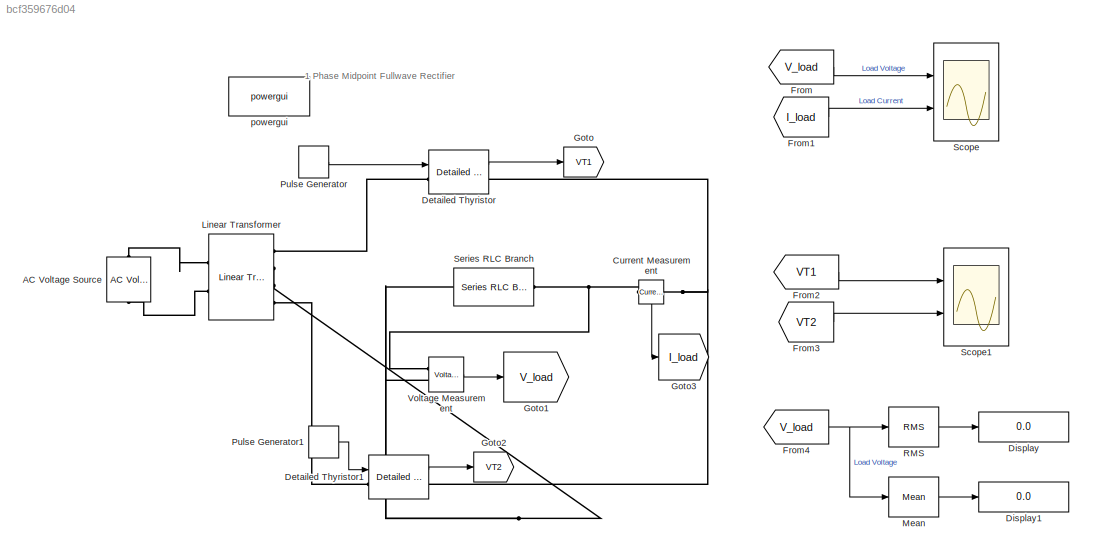
MODEL slx_bcf359676d04
KIND model
CONFIG AbsTol = auto
CONFIG EnableMultiTasking = off
CONFIG FixedStep = auto
CONFIG MaxStep = auto
CONFIG MinStep = auto
CONFIG RelTol = 1e-3
CONFIG SampleTimeConstraint = Unconstrained
CONFIG SolverName = VariableStepAuto
CONFIG StartTime = 0.0
CONFIG StopTime = 0.06
BLOCK [Reference] AC Voltage Source  REF=spsACVoltageSourceLib/AC Voltage Source
  Ports = [0, 0, 0, 0, 0, 1, 1]
  SourceBlock = spsACVoltageSourceLib/AC Voltage Source
  SourceProductBaseCode = PS
  SourceType = AC Voltage Source
BLOCK [Reference] Current Measurement  REF=spsCurrentMeasurementLib/Current Measurement
  NameLocation = top
  Ports = [0, 1, 0, 0, 0, 1, 1]
  SourceBlock = spsCurrentMeasurementLib/Current Measurement
  SourceProductBaseCode = PS
  SourceType = Current Measurement
  UserDataPersistent = on
BLOCK [Reference] Detailed Thyristor  REF=spsDetailedThyristorLib/Detailed Thyristor
  Ports = [1, 1, 0, 0, 0, 1, 1]
  SourceBlock = spsDetailedThyristorLib/Detailed Thyristor
  SourceProductBaseCode = PS
  SourceType = Detailed Thyristor
BLOCK [Reference] Detailed Thyristor1  REF=spsDetailedThyristorLib/Detailed Thyristor
  Ports = [1, 1, 0, 0, 0, 1, 1]
  SourceBlock = spsDetailedThyristorLib/Detailed Thyristor
  SourceProductBaseCode = PS
  SourceType = Detailed Thyristor
BLOCK [Display] Display
  Decimation = 1
  Ports = [1]
BLOCK [Display] Display1
  Decimation = 1
  Ports = [1]
BLOCK [From] From
  GotoTag = V_load
BLOCK [From] From1
  GotoTag = I_load
BLOCK [From] From2
  GotoTag = VT1
BLOCK [From] From3
  GotoTag = VT2
BLOCK [From] From4
  GotoTag = V_load
BLOCK [Goto] Goto
  GotoTag = VT1
BLOCK [Goto] Goto1
  GotoTag = V_load
BLOCK [Goto] Goto2
  GotoTag = VT2
BLOCK [Goto] Goto3
  GotoTag = I_load
BLOCK [Reference] Linear Transformer  REF=spsLinearTransformerLib/Linear Transformer
  Ports = [0, 0, 0, 0, 0, 2, 4]
  SourceBlock = spsLinearTransformerLib/Linear Transformer
  SourceProductBaseCode = PS
  SourceType = Linear Transformer
BLOCK [Reference] Mean  REF=spsMeanLib/Mean
  Ports = [1, 1]
  SourceBlock = spsMeanLib/Mean
  SourceProductBaseCode = PS
  SourceType = Mean
BLOCK [DiscretePulseGenerator] Pulse Generator
  Period = 0.02
  PhaseDelay = 0.02*(0/360)
  Ports = [0, 1]
  PulseType = Time based
  PulseWidth = 5
BLOCK [DiscretePulseGenerator] Pulse Generator1
  Period = 10
  PhaseDelay = 0.02*(180)/360
  Ports = [0, 1]
  PulseType = Time based
  PulseWidth = 5
BLOCK [Reference] RMS  REF=spsRMSLib/RMS
  Ports = [1, 1]
  SourceBlock = spsRMSLib/RMS
  SourceProductBaseCode = PS
  SourceType = RMS
BLOCK [Scope] Scope
  Floating = off
  NumInputPorts = 2
  Ports = [2]
  ScopeSpecificationString = Simulink.scopes.TimeScopeBlockCfg('CurrentConfiguration', extmgr.ConfigurationSet(extmgr.Configuration('Core','General UI',true),extmgr.Configuration('Core','Source UI',true),extmgr.Configuration('Sources','WiredSimulink',true),extmgr.Configuration('Visuals','Time Domain',true,'SerializedDisplays',{struct('MinYLimReal','-1.39975','MaxYLimReal','12.59762','YLabelReal','','MinYLimMag','0.00000','Max...<+2137ch>
BLOCK [Scope] Scope1
  Floating = off
  NumInputPorts = 2
  Ports = [2]
  ScopeSpecificationString = Simulink.scopes.TimeScopeBlockCfg('CurrentConfiguration', extmgr.ConfigurationSet(extmgr.Configuration('Core','General UI',true),extmgr.Configuration('Core','Source UI',true),extmgr.Configuration('Sources','WiredSimulink',true,'DataLoggingVariableName','ScopeData1'),extmgr.Configuration('Visuals','Time Domain',true),extmgr.Configuration('Tools','Plot Navigation',true),extmgr.Configuration('Tools',...<+58ch>
BLOCK [Reference] Series RLC Branch  REF=spsSeriesRLCBranchLib/Series RLC Branch
  Ports = [0, 0, 0, 0, 0, 1, 1]
  SourceBlock = spsSeriesRLCBranchLib/Series RLC Branch
  SourceProductBaseCode = PS
  SourceType = Series RLC Branch
BLOCK [Reference] Voltage Measurement  REF=spsVoltageMeasurementLib/Voltage Measurement
  Ports = [0, 1, 0, 0, 0, 2]
  SourceBlock = spsVoltageMeasurementLib/Voltage Measurement
  SourceProductBaseCode = PS
  SourceType = Voltage Measurement
  UserDataPersistent = on
BLOCK [Reference] powergui  REF=spspowerguiLib/powergui
  Ports = []
  Priority = 1
  SourceBlock = spspowerguiLib/powergui
  SourceProductBaseCode = PS
  SourceType = PSB option menu block
ANNOTATION (root): 1 Phase Midpoint Fullwave Rectifier
LINE Current Measurement:1 -> Goto3:1
LINE Detailed Thyristor1:1 -> Goto2:1
LINE Detailed Thyristor:1 -> Goto:1
LINE From1:1 -> Scope:2
LINE From2:1 -> Scope1:1
LINE From3:1 -> Scope1:2
NET From4:1 -> Mean:1, RMS:1
LINE From:1 -> Scope:1
LINE Mean:1 -> Display1:1
LINE Pulse Generator1:1 -> Detailed Thyristor1:1
LINE Pulse Generator:1 -> Detailed Thyristor:1
LINE RMS:1 -> Display:1
LINE Voltage Measurement:1 -> Goto1:1
PLINE AC Voltage Source:LConn1 -- Linear Transformer:LConn2
PLINE AC Voltage Source:RConn1 -- Linear Transformer:LConn1
PNET net1: Current Measurement:LConn1 -- Detailed Thyristor1:RConn1 -- Detailed Thyristor:RConn1
PNET net2: Current Measurement:RConn1 -- Series RLC Branch:RConn1 -- Voltage Measurement:LConn1
PLINE Detailed Thyristor1:LConn1 -- Linear Transformer:RConn4
PLINE Detailed Thyristor:LConn1 -- Linear Transformer:RConn1
PNET net3: Linear Transformer:RConn2 -- Linear Transformer:RConn3 -- Series RLC Branch:LConn1 -- Voltage Measurement:LConn2
note: NET lines group one-source signal fan-out (src -> all destinations, sorted); 1:1 wires keep LINE; PNET lines group multi-terminal physical nets as a canonical sorted terminal list (undirected conserving connections); 2-terminal nets keep the pairwise PLINE form
